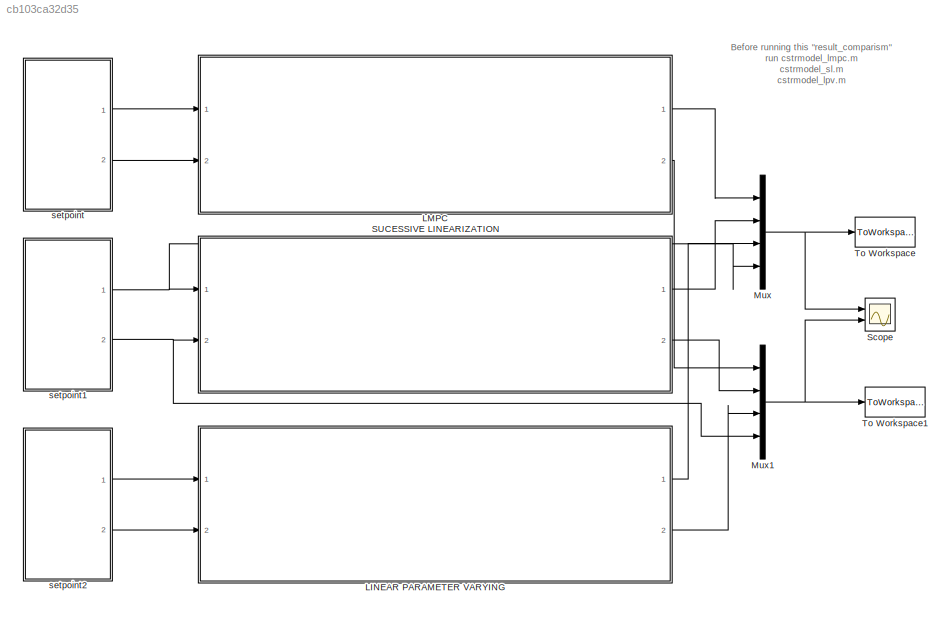
MODEL slx_cb103ca32d35
KIND model
CONFIG AbsTol = auto
CONFIG EnableMultiTasking = off
CONFIG FixedStep = auto
CONFIG MaxStep = 0.1
CONFIG MinStep = auto
CONFIG RelTol = auto
CONFIG SampleTimeConstraint = Unconstrained
CONFIG SolverName = ode45
CONFIG StartTime = 0.0
CONFIG StopTime = 120
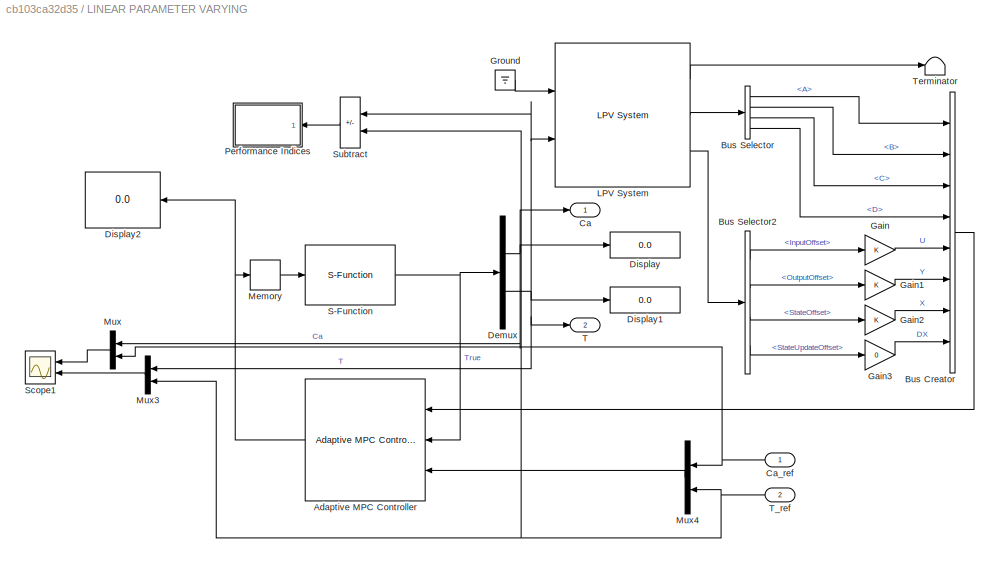
BLOCK [SubSystem] LINEAR PARAMETER VARYING
  Ports = [2, 2]
  RequestExecContextInheritance = off
BLOCK [Reference] LINEAR PARAMETER VARYING/Adaptive MPC Controller  REF=mpclib/Adaptive MPC Controller  (lib defined in mdl_ae329e0e0455)
  Ports = [3, 1]
  SCDEnableBlockLinearizationSpecification = on
  SourceBlock = mpclib/Adaptive MPC Controller
  SourceProductBaseCode = MP
  SourceType = Adaptive MPC
BLOCK [BusCreator] LINEAR PARAMETER VARYING/Bus Creator
  DisplayOption = bar
  InheritFromInputs = on
  Inputs = 8
  Ports = [8, 1]
BLOCK [BusSelector] LINEAR PARAMETER VARYING/Bus Selector
  OutputSignals = A,B,C,D
  Ports = [1, 4]
BLOCK [BusSelector] LINEAR PARAMETER VARYING/Bus Selector2
  OutputSignals = InputOffset,OutputOffset,StateOffset,StateUpdateOffset
  Ports = [1, 4]
BLOCK [Outport] LINEAR PARAMETER VARYING/Ca
BLOCK [Inport] LINEAR PARAMETER VARYING/Ca_ref
BLOCK [Demux] LINEAR PARAMETER VARYING/Demux
  Outputs = 2
  Ports = [1, 2]
BLOCK [Display] LINEAR PARAMETER VARYING/Display
  Decimation = 1
  Ports = [1]
BLOCK [Display] LINEAR PARAMETER VARYING/Display1
  Decimation = 1
  Ports = [1]
BLOCK [Display] LINEAR PARAMETER VARYING/Display2
  Decimation = 1
  Ports = [1]
BLOCK [Gain] LINEAR PARAMETER VARYING/Gain
BLOCK [Gain] LINEAR PARAMETER VARYING/Gain1
BLOCK [Gain] LINEAR PARAMETER VARYING/Gain2
BLOCK [Gain] LINEAR PARAMETER VARYING/Gain3
  Gain = 0
BLOCK [Ground] LINEAR PARAMETER VARYING/Ground
BLOCK [Reference] LINEAR PARAMETER VARYING/LPV System  REF=cstblocks/Linear Parameter Varying/LPV System
  Ports = [2, 3]
  SourceBlock = cstblocks/Linear Parameter Varying/LPV System
  SourceProductBaseCode = CT
  SourceType = LPV Block
BLOCK [Memory] LINEAR PARAMETER VARYING/Memory
  InitialCondition = [103.4;100]
BLOCK [Mux] LINEAR PARAMETER VARYING/Mux
  DisplayOption = bar
  Inputs = 2
  NameLocation = top
  Ports = [2, 1]
BLOCK [Mux] LINEAR PARAMETER VARYING/Mux3
  DisplayOption = bar
  Inputs = 2
  NameLocation = top
  Ports = [2, 1]
BLOCK [Mux] LINEAR PARAMETER VARYING/Mux4
  DisplayOption = bar
  Inputs = 2
  Ports = [2, 1]
BLOCK [SubSystem] LINEAR PARAMETER VARYING/Performance Indices
  Ports = [1]
  RequestExecContextInheritance = off
BLOCK [Abs] LINEAR PARAMETER VARYING/Performance Indices/Abs
  SaturateOnIntegerOverflow = off
BLOCK [Inport] LINEAR PARAMETER VARYING/Performance Indices/Error
BLOCK [Display] LINEAR PARAMETER VARYING/Performance Indices/IAE
  Decimation = 1
  Ports = [1]
BLOCK [Display] LINEAR PARAMETER VARYING/Performance Indices/ISE
  Decimation = 1
  Ports = [1]
BLOCK [Display] LINEAR PARAMETER VARYING/Performance Indices/ITAE
  Decimation = 1
  Ports = [1]
BLOCK [Display] LINEAR PARAMETER VARYING/Performance Indices/ITSE
  Decimation = 1
  Ports = [1]
BLOCK [Integrator] LINEAR PARAMETER VARYING/Performance Indices/Integrator
  Ports = [1, 1]
BLOCK [Integrator] LINEAR PARAMETER VARYING/Performance Indices/Integrator1
  Ports = [1, 1]
BLOCK [Integrator] LINEAR PARAMETER VARYING/Performance Indices/Integrator2
  Ports = [1, 1]
BLOCK [Integrator] LINEAR PARAMETER VARYING/Performance Indices/Integrator3
  Ports = [1, 1]
BLOCK [Math] LINEAR PARAMETER VARYING/Performance Indices/Math Function
  Operator = square
  Ports = [1, 1]
  SignedPower = on
BLOCK [Product] LINEAR PARAMETER VARYING/Performance Indices/Product
  Ports = [2, 1]
  RndMeth = Zero
BLOCK [Product] LINEAR PARAMETER VARYING/Performance Indices/Product1
  Ports = [2, 1]
  RndMeth = Zero
BLOCK [Reference] LINEAR PARAMETER VARYING/Performance Indices/Ramp  REF=simulink/Sources/Ramp
  Ports = [0, 1]
  SourceBlock = simulink/Sources/Ramp
  SourceProductBaseCode = SL
  SourceType = Ramp
BLOCK [Scope] LINEAR PARAMETER VARYING/Performance Indices/Scope
  Floating = off
  NumInputPorts = 1
  Ports = [1]
  ScopeSpecificationString = Simulink.scopes.TimeScopeBlockCfg('CurrentConfiguration', extmgr.ConfigurationSet(extmgr.Configuration('Core','General UI',true),extmgr.Configuration('Core','Source UI',true),extmgr.Configuration('Sources','WiredSimulink',true,'DataLoggingLimitDataPoints',true,'DataLoggingSaveFormat','Array','DataLoggingDecimation','1','DataLoggingDecimateData',true),extmgr.Configuration('Visuals','Time Domain',tr...<+878ch>  <repeated x3 — deduplicated; at blocks: Scope>
BLOCK [S-Function] LINEAR PARAMETER VARYING/S-Function
  EnableBusSupport = off
  FunctionName = pr_sfun
  Ports = [1, 1]
  SFcnIsStateOwnerBlock = off
  SFunctionDeploymentMode = off
BLOCK [Scope] LINEAR PARAMETER VARYING/Scope1
  Floating = off
  NumInputPorts = 2
  Ports = [2]
  ScopeSpecificationString = Simulink.scopes.TimeScopeBlockCfg('CurrentConfiguration', extmgr.ConfigurationSet(extmgr.Configuration('Core','General UI',true),extmgr.Configuration('Core','Source UI',true),extmgr.Configuration('Sources','WiredSimulink',true,'DataLoggingVariableName','ScopeData1'),extmgr.Configuration('Visuals','Time Domain',true,'SerializedDisplays',{struct('MinYLimReal','0.00425','MaxYLimReal','0.16171','YLabe...<+2046ch>
BLOCK [Sum] LINEAR PARAMETER VARYING/Subtract
  IconShape = rectangular
  Inputs = +-
  Ports = [2, 1]
BLOCK [Outport] LINEAR PARAMETER VARYING/T
  Port = 2
BLOCK [Inport] LINEAR PARAMETER VARYING/T_ref
  Port = 2
BLOCK [Terminator] LINEAR PARAMETER VARYING/Terminator
BLOCK [SubSystem] LMPC
  Ports = [2, 2]
  RequestExecContextInheritance = off
BLOCK [Outport] LMPC/Ca
BLOCK [Inport] LMPC/Ca_ref
BLOCK [Demux] LMPC/Demux
  Outputs = 2
  Ports = [1, 2]
BLOCK [Display] LMPC/Display
  Decimation = 1
  Ports = [1]
BLOCK [Display] LMPC/Display1
  Decimation = 1
  Ports = [1]
BLOCK [Reference] LMPC/MPC Controller  REF=mpclib/MPC Controller  (lib defined in mdl_ae329e0e0455)
  Ports = [2, 1]
  SCDEnableBlockLinearizationSpecification = on
  SourceBlock = mpclib/MPC Controller
  SourceProductBaseCode = MP
  SourceType = MPC
BLOCK [Mux] LMPC/Mux1
  DisplayOption = bar
  Inputs = 2
  Ports = [2, 1]
BLOCK [Mux] LMPC/Mux2
  DisplayOption = bar
  Inputs = 2
  Ports = [2, 1]
BLOCK [Mux] LMPC/Mux3
  DisplayOption = bar
  Inputs = 2
  Ports = [2, 1]
BLOCK [SubSystem] LMPC/Performance Indices
  Ports = [1]
  RequestExecContextInheritance = off
BLOCK [Abs] LMPC/Performance Indices/Abs
  SaturateOnIntegerOverflow = off
BLOCK [Inport] LMPC/Performance Indices/Error
BLOCK [Display] LMPC/Performance Indices/IAE
  Decimation = 1
  Ports = [1]
BLOCK [Display] LMPC/Performance Indices/ISE
  Decimation = 1
  Ports = [1]
BLOCK [Display] LMPC/Performance Indices/ITAE
  Decimation = 1
  Ports = [1]
BLOCK [Display] LMPC/Performance Indices/ITSE
  Decimation = 1
  Ports = [1]
BLOCK [Integrator] LMPC/Performance Indices/Integrator
  Ports = [1, 1]
BLOCK [Integrator] LMPC/Performance Indices/Integrator1
  Ports = [1, 1]
BLOCK [Integrator] LMPC/Performance Indices/Integrator2
  Ports = [1, 1]
BLOCK [Integrator] LMPC/Performance Indices/Integrator3
  Ports = [1, 1]
BLOCK [Math] LMPC/Performance Indices/Math Function
  Operator = square
  Ports = [1, 1]
  SignedPower = on
BLOCK [Product] LMPC/Performance Indices/Product
  Ports = [2, 1]
  RndMeth = Zero
BLOCK [Product] LMPC/Performance Indices/Product1
  Ports = [2, 1]
  RndMeth = Zero
BLOCK [Reference] LMPC/Performance Indices/Ramp  REF=simulink/Sources/Ramp
  Ports = [0, 1]
  SourceBlock = simulink/Sources/Ramp
  SourceProductBaseCode = SL
  SourceType = Ramp
BLOCK [Scope] LMPC/Performance Indices/Scope
  Floating = off
  NumInputPorts = 1
  Ports = [1]
BLOCK [S-Function] LMPC/S-Function
  EnableBusSupport = off
  FunctionName = pr_sfun
  Ports = [1, 1]
  SFcnIsStateOwnerBlock = off
  SFunctionDeploymentMode = off
BLOCK [Scope] LMPC/Scope
  Floating = off
  NumInputPorts = 2
  Ports = [2]
  ScopeSpecificationString = Simulink.scopes.TimeScopeBlockCfg('CurrentConfiguration', extmgr.ConfigurationSet(extmgr.Configuration('Core','General UI',true),extmgr.Configuration('Core','Source UI',true),extmgr.Configuration('Sources','WiredSimulink',true,'DataLoggingVariableName','ScopeData1'),extmgr.Configuration('Visuals','Time Domain',true,'SerializedDisplays',{struct('MinYLimReal','0.02309','MaxYLimReal','0.1922','YLabel...<+1988ch>
BLOCK [Sum] LMPC/Subtract
  IconShape = rectangular
  Inputs = +-
  Ports = [2, 1]
BLOCK [Outport] LMPC/T
  Port = 2
BLOCK [Inport] LMPC/T_ref
  Port = 2
BLOCK [Mux] Mux
  DisplayOption = bar
  Ports = [4, 1]
BLOCK [Mux] Mux1
  DisplayOption = bar
  Ports = [4, 1]
BLOCK [SubSystem] SUCESSIVE LINEARIZATION
  Ports = [2, 2]
  RequestExecContextInheritance = off
BLOCK [Reference] SUCESSIVE LINEARIZATION/Adaptive MPC Controller  REF=mpclib/Adaptive MPC Controller  (lib defined in mdl_ae329e0e0455)
  Ports = [3, 1]
  SCDEnableBlockLinearizationSpecification = on
  SourceBlock = mpclib/Adaptive MPC Controller
  SourceProductBaseCode = MP
  SourceType = Adaptive MPC
BLOCK [BusCreator] SUCESSIVE LINEARIZATION/Bus Creator
  DisplayOption = bar
  InheritFromInputs = on
  Inputs = 8
  Ports = [8, 1]
BLOCK [Outport] SUCESSIVE LINEARIZATION/Ca
BLOCK [Inport] SUCESSIVE LINEARIZATION/Ca_ref
BLOCK [Demux] SUCESSIVE LINEARIZATION/Demux
  Outputs = 2
  Ports = [1, 2]
BLOCK [Demux] SUCESSIVE LINEARIZATION/Demux1
  Outputs = 2
  Ports = [1, 2]
BLOCK [Display] SUCESSIVE LINEARIZATION/Display
  Decimation = 1
  Ports = [1]
BLOCK [Display] SUCESSIVE LINEARIZATION/Display1
  Decimation = 1
  Ports = [1]
BLOCK [Display] SUCESSIVE LINEARIZATION/Display2
  Decimation = 1
  Ports = [1]
BLOCK [Memory] SUCESSIVE LINEARIZATION/Memory
  InitialCondition = 438.51
BLOCK [Memory] SUCESSIVE LINEARIZATION/Memory1
  InitialCondition = [0.1;438.51]
BLOCK [Memory] SUCESSIVE LINEARIZATION/Memory2
  InitialCondition = 103.41
BLOCK [Memory] SUCESSIVE LINEARIZATION/Memory3
  InitialCondition = 100
BLOCK [Mux] SUCESSIVE LINEARIZATION/Mux
  DisplayOption = bar
  Inputs = 2
  NameLocation = top
  Ports = [2, 1]
BLOCK [Mux] SUCESSIVE LINEARIZATION/Mux2
  DisplayOption = bar
  Inputs = 2
  Ports = [2, 1]
BLOCK [Mux] SUCESSIVE LINEARIZATION/Mux4
  DisplayOption = bar
  Inputs = 2
  NameLocation = top
  Ports = [2, 1]
BLOCK [SubSystem] SUCESSIVE LINEARIZATION/Performance Indices
  Ports = [1]
  RequestExecContextInheritance = off
BLOCK [Abs] SUCESSIVE LINEARIZATION/Performance Indices/Abs
  SaturateOnIntegerOverflow = off
BLOCK [Inport] SUCESSIVE LINEARIZATION/Performance Indices/Error
BLOCK [Display] SUCESSIVE LINEARIZATION/Performance Indices/IAE
  Decimation = 1
  Ports = [1]
BLOCK [Display] SUCESSIVE LINEARIZATION/Performance Indices/ISE
  Decimation = 1
  Ports = [1]
BLOCK [Display] SUCESSIVE LINEARIZATION/Performance Indices/ITAE
  Decimation = 1
  Ports = [1]
BLOCK [Display] SUCESSIVE LINEARIZATION/Performance Indices/ITSE
  Decimation = 1
  Ports = [1]
BLOCK [Integrator] SUCESSIVE LINEARIZATION/Performance Indices/Integrator
  Ports = [1, 1]
BLOCK [Integrator] SUCESSIVE LINEARIZATION/Performance Indices/Integrator1
  Ports = [1, 1]
BLOCK [Integrator] SUCESSIVE LINEARIZATION/Performance Indices/Integrator2
  Ports = [1, 1]
BLOCK [Integrator] SUCESSIVE LINEARIZATION/Performance Indices/Integrator3
  Ports = [1, 1]
BLOCK [Math] SUCESSIVE LINEARIZATION/Performance Indices/Math Function
  Operator = square
  Ports = [1, 1]
  SignedPower = on
BLOCK [Product] SUCESSIVE LINEARIZATION/Performance Indices/Product
  Ports = [2, 1]
  RndMeth = Zero
BLOCK [Product] SUCESSIVE LINEARIZATION/Performance Indices/Product1
  Ports = [2, 1]
  RndMeth = Zero
BLOCK [Reference] SUCESSIVE LINEARIZATION/Performance Indices/Ramp  REF=simulink/Sources/Ramp
  Ports = [0, 1]
  SourceBlock = simulink/Sources/Ramp
  SourceProductBaseCode = SL
  SourceType = Ramp
BLOCK [Scope] SUCESSIVE LINEARIZATION/Performance Indices/Scope
  Floating = off
  NumInputPorts = 1
  Ports = [1]
BLOCK [S-Function] SUCESSIVE LINEARIZATION/S-Function
  EnableBusSupport = off
  FunctionName = pr_sfun
  Ports = [1, 1]
  SFcnIsStateOwnerBlock = off
  SFunctionDeploymentMode = off
BLOCK [Scope] SUCESSIVE LINEARIZATION/Scope
  Floating = off
  NumInputPorts = 2
  Ports = [2]
  ScopeSpecificationString = Simulink.scopes.TimeScopeBlockCfg('CurrentConfiguration', extmgr.ConfigurationSet(extmgr.Configuration('Core','General UI',true),extmgr.Configuration('Core','Source UI',true),extmgr.Configuration('Sources','WiredSimulink',true,'DataLoggingVariableName','ScopeData2'),extmgr.Configuration('Visuals','Time Domain',true,'SerializedDisplays',{struct('MinYLimReal','-0.10137','MaxYLimReal','1.02948','YLab...<+2074ch>
BLOCK [Scope] SUCESSIVE LINEARIZATION/Scope1
  Floating = off
  NumInputPorts = 1
  Ports = [1]
  ScopeSpecificationString = Simulink.scopes.TimeScopeBlockCfg('CurrentConfiguration', extmgr.ConfigurationSet(extmgr.Configuration('Core','General UI',true),extmgr.Configuration('Core','Source UI',true),extmgr.Configuration('Sources','WiredSimulink',true,'DataLoggingVariableName','ScopeData3'),extmgr.Configuration('Visuals','Time Domain',true),extmgr.Configuration('Tools','Plot Navigation',true),extmgr.Configuration('Tools',...<+40ch>
BLOCK [Sum] SUCESSIVE LINEARIZATION/Subtract
  IconShape = rectangular
  Inputs = +-
  Ports = [2, 1]
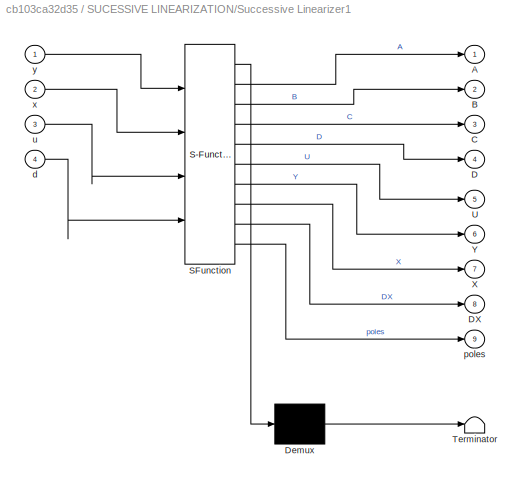
BLOCK [SubSystem] SUCESSIVE LINEARIZATION/Successive Linearizer1
  ErrorFcn = Stateflow.Translate.translate
  PermitHierarchicalResolution = ExplicitOnly
  Ports = [4, 9]
  RequestExecContextInheritance = off
  SFBlockType = MATLAB Function
  SystemSampleTime = 0.5
  TreatAsAtomicUnit = on
BLOCK [Demux] SUCESSIVE LINEARIZATION/Successive Linearizer1/ Demux 
  Outputs = 1
  Ports = [1, 1]
BLOCK [S-Function] SUCESSIVE LINEARIZATION/Successive Linearizer1/ SFunction 
  EnableBusSupport = on
  FunctionName = sf_sfun
  PortCounts = [4 10]
  Ports = [4, 10]
  SFcnIsStateOwnerBlock = off
  SFunctionDeploymentMode = off
  Tag = Stateflow S-Function 1
BLOCK [Terminator] SUCESSIVE LINEARIZATION/Successive Linearizer1/ Terminator 
BLOCK [Outport] SUCESSIVE LINEARIZATION/Successive Linearizer1/A
  VectorParamsAs1DForOutWhenUnconnected = off
BLOCK [Outport] SUCESSIVE LINEARIZATION/Successive Linearizer1/B
  Port = 2
  VectorParamsAs1DForOutWhenUnconnected = off
BLOCK [Outport] SUCESSIVE LINEARIZATION/Successive Linearizer1/C
  Port = 3
  VectorParamsAs1DForOutWhenUnconnected = off
BLOCK [Outport] SUCESSIVE LINEARIZATION/Successive Linearizer1/D
  Port = 4
  VectorParamsAs1DForOutWhenUnconnected = off
BLOCK [Outport] SUCESSIVE LINEARIZATION/Successive Linearizer1/DX
  Port = 8
  VectorParamsAs1DForOutWhenUnconnected = off
BLOCK [Outport] SUCESSIVE LINEARIZATION/Successive Linearizer1/U
  Port = 5
  VectorParamsAs1DForOutWhenUnconnected = off
BLOCK [Outport] SUCESSIVE LINEARIZATION/Successive Linearizer1/X
  Port = 7
  VectorParamsAs1DForOutWhenUnconnected = off
BLOCK [Outport] SUCESSIVE LINEARIZATION/Successive Linearizer1/Y
  Port = 6
  VectorParamsAs1DForOutWhenUnconnected = off
BLOCK [Inport] SUCESSIVE LINEARIZATION/Successive Linearizer1/d
  Port = 4
BLOCK [Outport] SUCESSIVE LINEARIZATION/Successive Linearizer1/poles
  Port = 9
BLOCK [Inport] SUCESSIVE LINEARIZATION/Successive Linearizer1/u
  Port = 3
BLOCK [Inport] SUCESSIVE LINEARIZATION/Successive Linearizer1/x
  Port = 2
BLOCK [Inport] SUCESSIVE LINEARIZATION/Successive Linearizer1/y
BLOCK [Outport] SUCESSIVE LINEARIZATION/T
  Port = 2
BLOCK [Inport] SUCESSIVE LINEARIZATION/T_ref
  NameLocation = top
  Port = 2
BLOCK [Scope] Scope
  Floating = off
  NumInputPorts = 2
  Ports = [2]
  ScopeSpecificationString = Simulink.scopes.TimeScopeBlockCfg('CurrentConfiguration', extmgr.ConfigurationSet(extmgr.Configuration('Core','General UI',true),extmgr.Configuration('Core','Source UI',true),extmgr.Configuration('Sources','WiredSimulink',true,'DataLoggingVariableName','ScopeData4'),extmgr.Configuration('Visuals','Time Domain',true,'SerializedDisplays',{struct('MinYLimReal','0.00136','MaxYLimReal','0.16039','YLabe...<+2350ch>
BLOCK [ToWorkspace] To Workspace
  FixptAsFi = on
  MaxDataPoints = inf
  Ports = [1]
  SampleTime = -1
  SaveFormat = Structure With Time
  VariableName = asave
BLOCK [ToWorkspace] To Workspace1
  FixptAsFi = on
  MaxDataPoints = inf
  Ports = [1]
  SampleTime = -1
  SaveFormat = Structure With Time
  VariableName = bsave
BLOCK [SubSystem] setpoint
  ClipboardFcn = sigbuilder_block('clipboard');
  CloseFcn = sigbuilder_block('close');
  ContinueFcn = sigbuilder_block('continue');
  CopyFcn = sigbuilder_block('copy');
  DeleteFcn = sigbuilder_block('delete');
  LoadFcn = sigbuilder_block('load');
  MaskHideContents = on
  ModelCloseFcn = sigbuilder_block('modelClose');
  NameChangeFcn = sigbuilder_block('namechange');
  OpenFcn = sigbuilder_block('open',[5.5 0 949 448 ]);
  PauseFcn = sigbuilder_block('pause');
  Ports = [0, 2]
  PreSaveFcn = sigbuilder_block('preSave');
  RequestExecContextInheritance = off
  StartFcn = sigbuilder_block('start');
  StopFcn = sigbuilder_block('stop');
  Tag = STV Subsys
BLOCK [Outport] setpoint/Ca Setpoint
  Tag = STV Outport
BLOCK [Demux] setpoint/Demux
  DisplayOption = none
  Outputs = 2
  Ports = [1, 2]
  Tag = STV Demux
BLOCK [FromWorkspace] setpoint/FromWs
  Tag = STV FromWs
  VariableName = tuvar
BLOCK [Outport] setpoint/T setpoint
  Port = 2
  Tag = STV Outport
BLOCK [SubSystem] setpoint1
  ClipboardFcn = sigbuilder_block('clipboard');
  CloseFcn = sigbuilder_block('close');
  ContinueFcn = sigbuilder_block('continue');
  CopyFcn = sigbuilder_block('copy');
  DeleteFcn = sigbuilder_block('delete');
  LoadFcn = sigbuilder_block('load');
  MaskHideContents = on
  ModelCloseFcn = sigbuilder_block('modelClose');
  NameChangeFcn = sigbuilder_block('namechange');
  OpenFcn = sigbuilder_block('open',[5.5 0 949 448 ]);
  PauseFcn = sigbuilder_block('pause');
  Ports = [0, 2]
  PreSaveFcn = sigbuilder_block('preSave');
  RequestExecContextInheritance = off
  StartFcn = sigbuilder_block('start');
  StopFcn = sigbuilder_block('stop');
  Tag = STV Subsys
BLOCK [Outport] setpoint1/Ca Setpoint
  Tag = STV Outport
BLOCK [Demux] setpoint1/Demux
  DisplayOption = none
  Outputs = 2
  Ports = [1, 2]
  Tag = STV Demux
BLOCK [FromWorkspace] setpoint1/FromWs
  Tag = STV FromWs
  VariableName = tuvar
BLOCK [Outport] setpoint1/T setpoint
  Port = 2
  Tag = STV Outport
BLOCK [SubSystem] setpoint2
  ClipboardFcn = sigbuilder_block('clipboard');
  CloseFcn = sigbuilder_block('close');
  ContinueFcn = sigbuilder_block('continue');
  CopyFcn = sigbuilder_block('copy');
  DeleteFcn = sigbuilder_block('delete');
  LoadFcn = sigbuilder_block('load');
  MaskHideContents = on
  ModelCloseFcn = sigbuilder_block('modelClose');
  NameChangeFcn = sigbuilder_block('namechange');
  OpenFcn = sigbuilder_block('open',[5.5 0 949 448 ]);
  PauseFcn = sigbuilder_block('pause');
  Ports = [0, 2]
  PreSaveFcn = sigbuilder_block('preSave');
  RequestExecContextInheritance = off
  StartFcn = sigbuilder_block('start');
  StopFcn = sigbuilder_block('stop');
  Tag = STV Subsys
BLOCK [Outport] setpoint2/Ca Setpoint
  Tag = STV Outport
BLOCK [Demux] setpoint2/Demux
  DisplayOption = none
  Outputs = 2
  Ports = [1, 2]
  Tag = STV Demux
BLOCK [FromWorkspace] setpoint2/FromWs
  Tag = STV FromWs
  VariableName = tuvar
BLOCK [Outport] setpoint2/T setpoint
  Port = 2
  Tag = STV Outport
ANNOTATION (root): Before running this "result_comparism" run cstrmodel_lmpc.m cstrmodel_sl.m cstrmodel_lpv.m
NET LINEAR PARAMETER VARYING/Adaptive MPC Controller:1 -> LINEAR PARAMETER VARYING/Display2:1, LINEAR PARAMETER VARYING/Memory:1
LINE LINEAR PARAMETER VARYING/Bus Creator:1 -> LINEAR PARAMETER VARYING/Adaptive MPC Controller:1
LINE LINEAR PARAMETER VARYING/Bus Selector2:1 -> LINEAR PARAMETER VARYING/Gain:1
LINE LINEAR PARAMETER VARYING/Bus Selector2:2 -> LINEAR PARAMETER VARYING/Gain1:1
LINE LINEAR PARAMETER VARYING/Bus Selector2:3 -> LINEAR PARAMETER VARYING/Gain2:1
LINE LINEAR PARAMETER VARYING/Bus Selector2:4 -> LINEAR PARAMETER VARYING/Gain3:1
LINE LINEAR PARAMETER VARYING/Bus Selector:1 -> LINEAR PARAMETER VARYING/Bus Creator:1
LINE LINEAR PARAMETER VARYING/Bus Selector:2 -> LINEAR PARAMETER VARYING/Bus Creator:2
LINE LINEAR PARAMETER VARYING/Bus Selector:3 -> LINEAR PARAMETER VARYING/Bus Creator:3
LINE LINEAR PARAMETER VARYING/Bus Selector:4 -> LINEAR PARAMETER VARYING/Bus Creator:4
NET LINEAR PARAMETER VARYING/Ca_ref:1 -> LINEAR PARAMETER VARYING/Mux4:1, LINEAR PARAMETER VARYING/Mux:2
NET LINEAR PARAMETER VARYING/Demux:1 -> LINEAR PARAMETER VARYING/Ca:1, LINEAR PARAMETER VARYING/Display:1, LINEAR PARAMETER VARYING/Mux:1
NET LINEAR PARAMETER VARYING/Demux:2 -> LINEAR PARAMETER VARYING/Display1:1, LINEAR PARAMETER VARYING/LPV System:2, LINEAR PARAMETER VARYING/Mux3:1, LINEAR PARAMETER VARYING/Subtract:1, LINEAR PARAMETER VARYING/T:1
LINE LINEAR PARAMETER VARYING/Gain1:1 -> LINEAR PARAMETER VARYING/Bus Creator:6
LINE LINEAR PARAMETER VARYING/Gain2:1 -> LINEAR PARAMETER VARYING/Bus Creator:7
LINE LINEAR PARAMETER VARYING/Gain3:1 -> LINEAR PARAMETER VARYING/Bus Creator:8
LINE LINEAR PARAMETER VARYING/Gain:1 -> LINEAR PARAMETER VARYING/Bus Creator:5
LINE LINEAR PARAMETER VARYING/Ground:1 -> LINEAR PARAMETER VARYING/LPV System:1
LINE LINEAR PARAMETER VARYING/LPV System:1 -> LINEAR PARAMETER VARYING/Terminator:1
LINE LINEAR PARAMETER VARYING/LPV System:2 -> LINEAR PARAMETER VARYING/Bus Selector:1
LINE LINEAR PARAMETER VARYING/LPV System:3 -> LINEAR PARAMETER VARYING/Bus Selector2:1
LINE LINEAR PARAMETER VARYING/Memory:1 -> LINEAR PARAMETER VARYING/S-Function:1
LINE LINEAR PARAMETER VARYING/Mux3:1 -> LINEAR PARAMETER VARYING/Scope1:2
LINE LINEAR PARAMETER VARYING/Mux4:1 -> LINEAR PARAMETER VARYING/Adaptive MPC Controller:3
LINE LINEAR PARAMETER VARYING/Mux:1 -> LINEAR PARAMETER VARYING/Scope1:1
NET LINEAR PARAMETER VARYING/Performance Indices/Abs:1 -> LINEAR PARAMETER VARYING/Performance Indices/Integrator:1, LINEAR PARAMETER VARYING/Performance Indices/Product:1
NET LINEAR PARAMETER VARYING/Performance Indices/Error:1 -> LINEAR PARAMETER VARYING/Performance Indices/Abs:1, LINEAR PARAMETER VARYING/Performance Indices/Math Function:1
LINE LINEAR PARAMETER VARYING/Performance Indices/Integrator1:1 -> LINEAR PARAMETER VARYING/Performance Indices/ITAE:1
LINE LINEAR PARAMETER VARYING/Performance Indices/Integrator2:1 -> LINEAR PARAMETER VARYING/Performance Indices/ITSE:1
LINE LINEAR PARAMETER VARYING/Performance Indices/Integrator3:1 -> LINEAR PARAMETER VARYING/Performance Indices/ISE:1
LINE LINEAR PARAMETER VARYING/Performance Indices/Integrator:1 -> LINEAR PARAMETER VARYING/Performance Indices/IAE:1
NET LINEAR PARAMETER VARYING/Performance Indices/Math Function:1 -> LINEAR PARAMETER VARYING/Performance Indices/Integrator3:1, LINEAR PARAMETER VARYING/Performance Indices/Product1:2
LINE LINEAR PARAMETER VARYING/Performance Indices/Product1:1 -> LINEAR PARAMETER VARYING/Performance Indices/Integrator2:1
LINE LINEAR PARAMETER VARYING/Performance Indices/Product:1 -> LINEAR PARAMETER VARYING/Performance Indices/Integrator1:1
NET LINEAR PARAMETER VARYING/Performance Indices/Ramp:1 -> LINEAR PARAMETER VARYING/Performance Indices/Product1:1, LINEAR PARAMETER VARYING/Performance Indices/Product:2, LINEAR PARAMETER VARYING/Performance Indices/Scope:1
NET LINEAR PARAMETER VARYING/S-Function:1 -> LINEAR PARAMETER VARYING/Adaptive MPC Controller:2, LINEAR PARAMETER VARYING/Demux:1
LINE LINEAR PARAMETER VARYING/Subtract:1 -> LINEAR PARAMETER VARYING/Performance Indices:1
NET LINEAR PARAMETER VARYING/T_ref:1 -> LINEAR PARAMETER VARYING/Mux3:2, LINEAR PARAMETER VARYING/Mux4:2, LINEAR PARAMETER VARYING/Subtract:2
LINE LINEAR PARAMETER VARYING:1 -> Mux:3
LINE LINEAR PARAMETER VARYING:2 -> Mux1:3
NET LMPC/Ca_ref:1 -> LMPC/Mux1:2, LMPC/Mux2:1
NET LMPC/Demux:1 -> LMPC/Ca:1, LMPC/Display:1, LMPC/Mux1:1
NET LMPC/Demux:2 -> LMPC/Display1:1, LMPC/Mux3:1, LMPC/Subtract:1, LMPC/T:1
LINE LMPC/MPC Controller:1 -> LMPC/S-Function:1
LINE LMPC/Mux1:1 -> LMPC/Scope:1
LINE LMPC/Mux2:1 -> LMPC/MPC Controller:2
LINE LMPC/Mux3:1 -> LMPC/Scope:2
NET LMPC/Performance Indices/Abs:1 -> LMPC/Performance Indices/Integrator:1, LMPC/Performance Indices/Product:1
NET LMPC/Performance Indices/Error:1 -> LMPC/Performance Indices/Abs:1, LMPC/Performance Indices/Math Function:1
LINE LMPC/Performance Indices/Integrator1:1 -> LMPC/Performance Indices/ITAE:1
LINE LMPC/Performance Indices/Integrator2:1 -> LMPC/Performance Indices/ITSE:1
LINE LMPC/Performance Indices/Integrator3:1 -> LMPC/Performance Indices/ISE:1
LINE LMPC/Performance Indices/Integrator:1 -> LMPC/Performance Indices/IAE:1
NET LMPC/Performance Indices/Math Function:1 -> LMPC/Performance Indices/Integrator3:1, LMPC/Performance Indices/Product1:2
LINE LMPC/Performance Indices/Product1:1 -> LMPC/Performance Indices/Integrator2:1
LINE LMPC/Performance Indices/Product:1 -> LMPC/Performance Indices/Integrator1:1
NET LMPC/Performance Indices/Ramp:1 -> LMPC/Performance Indices/Product1:1, LMPC/Performance Indices/Product:2, LMPC/Performance Indices/Scope:1
NET LMPC/S-Function:1 -> LMPC/Demux:1, LMPC/MPC Controller:1
LINE LMPC/Subtract:1 -> LMPC/Performance Indices:1
NET LMPC/T_ref:1 -> LMPC/Mux2:2, LMPC/Mux3:2, LMPC/Subtract:2
LINE LMPC:1 -> Mux:1
LINE LMPC:2 -> Mux1:1
NET Mux1:1 -> Scope:2, To Workspace1:1
NET Mux:1 -> Scope:1, To Workspace:1
NET SUCESSIVE LINEARIZATION/Adaptive MPC Controller:1 -> SUCESSIVE LINEARIZATION/Demux1:1, SUCESSIVE LINEARIZATION/S-Function:1
LINE SUCESSIVE LINEARIZATION/Bus Creator:1 -> SUCESSIVE LINEARIZATION/Adaptive MPC Controller:1
NET SUCESSIVE LINEARIZATION/Ca_ref:1 -> SUCESSIVE LINEARIZATION/Mux2:1, SUCESSIVE LINEARIZATION/Mux:2
NET SUCESSIVE LINEARIZATION/Demux1:1 -> SUCESSIVE LINEARIZATION/Display1:1, SUCESSIVE LINEARIZATION/Memory2:1
NET SUCESSIVE LINEARIZATION/Demux1:2 -> SUCESSIVE LINEARIZATION/Display2:1, SUCESSIVE LINEARIZATION/Memory3:1
NET SUCESSIVE LINEARIZATION/Demux:1 -> SUCESSIVE LINEARIZATION/Ca:1, SUCESSIVE LINEARIZATION/Mux:1
NET SUCESSIVE LINEARIZATION/Demux:2 -> SUCESSIVE LINEARIZATION/Memory:1, SUCESSIVE LINEARIZATION/Mux4:1, SUCESSIVE LINEARIZATION/Subtract:1, SUCESSIVE LINEARIZATION/T:1
LINE SUCESSIVE LINEARIZATION/Memory1:1 -> SUCESSIVE LINEARIZATION/Successive Linearizer1:2
LINE SUCESSIVE LINEARIZATION/Memory2:1 -> SUCESSIVE LINEARIZATION/Successive Linearizer1:3
LINE SUCESSIVE LINEARIZATION/Memory3:1 -> SUCESSIVE LINEARIZATION/Successive Linearizer1:4
LINE SUCESSIVE LINEARIZATION/Memory:1 -> SUCESSIVE LINEARIZATION/Successive Linearizer1:1
LINE SUCESSIVE LINEARIZATION/Mux2:1 -> SUCESSIVE LINEARIZATION/Adaptive MPC Controller:3
LINE SUCESSIVE LINEARIZATION/Mux4:1 -> SUCESSIVE LINEARIZATION/Scope:2
LINE SUCESSIVE LINEARIZATION/Mux:1 -> SUCESSIVE LINEARIZATION/Scope:1
NET SUCESSIVE LINEARIZATION/Performance Indices/Abs:1 -> SUCESSIVE LINEARIZATION/Performance Indices/Integrator:1, SUCESSIVE LINEARIZATION/Performance Indices/Product:1
NET SUCESSIVE LINEARIZATION/Performance Indices/Error:1 -> SUCESSIVE LINEARIZATION/Performance Indices/Abs:1, SUCESSIVE LINEARIZATION/Performance Indices/Math Function:1
LINE SUCESSIVE LINEARIZATION/Performance Indices/Integrator1:1 -> SUCESSIVE LINEARIZATION/Performance Indices/ITAE:1
LINE SUCESSIVE LINEARIZATION/Performance Indices/Integrator2:1 -> SUCESSIVE LINEARIZATION/Performance Indices/ITSE:1
LINE SUCESSIVE LINEARIZATION/Performance Indices/Integrator3:1 -> SUCESSIVE LINEARIZATION/Performance Indices/ISE:1
LINE SUCESSIVE LINEARIZATION/Performance Indices/Integrator:1 -> SUCESSIVE LINEARIZATION/Performance Indices/IAE:1
NET SUCESSIVE LINEARIZATION/Performance Indices/Math Function:1 -> SUCESSIVE LINEARIZATION/Performance Indices/Integrator3:1, SUCESSIVE LINEARIZATION/Performance Indices/Product1:2
LINE SUCESSIVE LINEARIZATION/Performance Indices/Product1:1 -> SUCESSIVE LINEARIZATION/Performance Indices/Integrator2:1
LINE SUCESSIVE LINEARIZATION/Performance Indices/Product:1 -> SUCESSIVE LINEARIZATION/Performance Indices/Integrator1:1
NET SUCESSIVE LINEARIZATION/Performance Indices/Ramp:1 -> SUCESSIVE LINEARIZATION/Performance Indices/Product1:1, SUCESSIVE LINEARIZATION/Performance Indices/Product:2, SUCESSIVE LINEARIZATION/Performance Indices/Scope:1
NET SUCESSIVE LINEARIZATION/S-Function:1 -> SUCESSIVE LINEARIZATION/Adaptive MPC Controller:2, SUCESSIVE LINEARIZATION/Demux:1, SUCESSIVE LINEARIZATION/Display:1, SUCESSIVE LINEARIZATION/Memory1:1
LINE SUCESSIVE LINEARIZATION/Subtract:1 -> SUCESSIVE LINEARIZATION/Performance Indices:1
LINE SUCESSIVE LINEARIZATION/Successive Linearizer1:1 -> SUCESSIVE LINEARIZATION/Bus Creator:1
LINE SUCESSIVE LINEARIZATION/Successive Linearizer1:2 -> SUCESSIVE LINEARIZATION/Bus Creator:2
LINE SUCESSIVE LINEARIZATION/Successive Linearizer1:3 -> SUCESSIVE LINEARIZATION/Bus Creator:3
LINE SUCESSIVE LINEARIZATION/Successive Linearizer1:4 -> SUCESSIVE LINEARIZATION/Bus Creator:4
LINE SUCESSIVE LINEARIZATION/Successive Linearizer1:5 -> SUCESSIVE LINEARIZATION/Bus Creator:5
LINE SUCESSIVE LINEARIZATION/Successive Linearizer1:6 -> SUCESSIVE LINEARIZATION/Bus Creator:6
LINE SUCESSIVE LINEARIZATION/Successive Linearizer1:7 -> SUCESSIVE LINEARIZATION/Bus Creator:7
LINE SUCESSIVE LINEARIZATION/Successive Linearizer1:8 -> SUCESSIVE LINEARIZATION/Bus Creator:8
LINE SUCESSIVE LINEARIZATION/Successive Linearizer1:9 -> SUCESSIVE LINEARIZATION/Scope1:1
NET SUCESSIVE LINEARIZATION/T_ref:1 -> SUCESSIVE LINEARIZATION/Mux2:2, SUCESSIVE LINEARIZATION/Mux4:2, SUCESSIVE LINEARIZATION/Subtract:2
LINE SUCESSIVE LINEARIZATION:1 -> Mux:2
LINE SUCESSIVE LINEARIZATION:2 -> Mux1:2
NET setpoint1:1 -> Mux:4, SUCESSIVE LINEARIZATION:1
NET setpoint1:2 -> Mux1:4, SUCESSIVE LINEARIZATION:2
LINE setpoint2:1 -> LINEAR PARAMETER VARYING:1
LINE setpoint2:2 -> LINEAR PARAMETER VARYING:2
LINE setpoint:1 -> LMPC:1
LINE setpoint:2 -> LMPC:2
note: NET lines group one-source signal fan-out (src -> all destinations, sorted); 1:1 wires keep LINE
CHART SUCESSIVE LINEARIZATION/Successive Linearizer1 states=1 transitions=1
  STATE_LABEL 'eML_blk_kernel()'
  STATE_LABEL 'SCRIPT:\nfunction [A, B, C, D, U, Y, X, DX,poles] = fcn(y, x, u, d)\n\n%%%%%%%%%%%%%%%%%%%%%%%%%%%%%%%%%%%%%%%%%%%%%%%%%%%%%%%\n%#codegen\nx_1 = x(1);\nx_2 = x(2);\ny1 = x_1; \ny2 = x_2;\n% Define constant outputs\nTs = 0.1;\n\nU = [u(1) ; d(1)] ;\nY = [y1 ; y2];\n%X = x(1:2);\n%Y = [x_1;x_2];\nX = [y1 ; y2];\n\n\n\n\n% Analytical linearization of mechanistic CSTR model (continuous time)\n% [A, Bo] = getContinuous(T, C...<+2766ch>'
CHART  states=0 transitions=0
